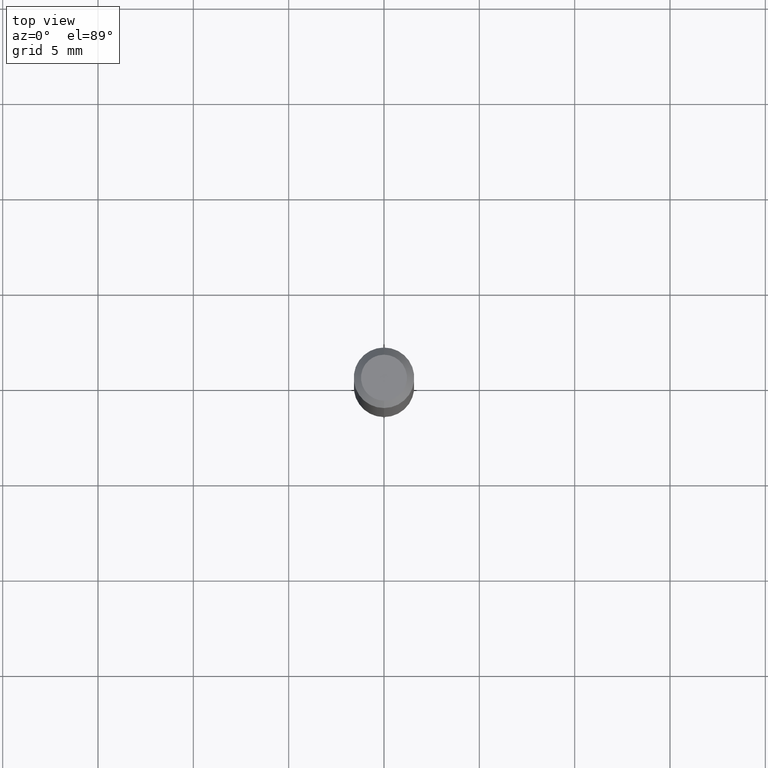
[diagram: clean part render]
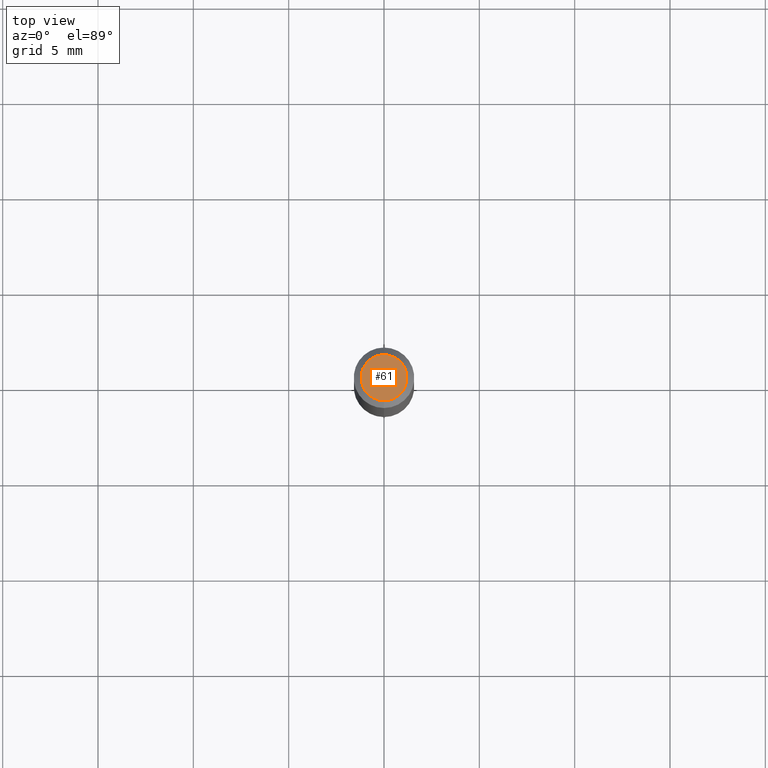
[diagram: same view with one face highlighted and labeled with its STEP entity id]
A machine part, top view. The second image highlights one B-rep face of the part: STEP entity #61.
In plain terms, the highlighted planar face has unit normal (0, -0, -1).
Its self-contained STEP definition (entity closure, byte-faithful):
#3 = EDGE_CURVE ( 'NONE', #215, #467, #497, .T. ) ;
#39 = DIRECTION ( 'NONE',  ( -6.982962677686265133E-15, -1.000000000000000000, 3.491472756912976858E-15 ) ) ;
#50 = CARTESIAN_POINT ( 'NONE',  ( 8.756930564183345789E-45, -1.250251464974845708E-30, -3.580871317123690674E-16 ) ) ;
#60 = DIRECTION ( 'NONE',  ( 6.982962677686265922E-15, 1.000000000000000000, -3.491472756912977253E-15 ) ) ;
#61 = ADVANCED_FACE ( 'NONE', ( #463 ), #115, .F. ) ;
#62 = ORIENTED_EDGE ( 'NONE', *, *, #3, .T. ) ;
#115 = PLANE ( 'NONE',  #318 ) ;
#117 = DIRECTION ( 'NONE',  ( -2.445474798914943281E-29, 3.491472756912977253E-15, 1.000000000000000000 ) ) ;
#141 = DIRECTION ( 'NONE',  ( -6.982962677686265133E-15, -1.000000000000000000, 3.491472756912976858E-15 ) ) ;
#149 = DIRECTION ( 'NONE',  ( 2.445474798914943001E-29, -3.491472756912977253E-15, -1.000000000000000000 ) ) ;
#194 = EDGE_LOOP ( 'NONE', ( #259, #62 ) ) ;
#197 = CARTESIAN_POINT ( 'NONE',  ( -3.773273898774342241E-16, -0.04750000000000004219, -1.922421757590025168E-16 ) ) ;
#198 = AXIS2_PLACEMENT_3D ( 'NONE', #461, #117, #39 ) ;
#215 = VERTEX_POINT ( 'NONE', #197 ) ;
#250 = AXIS2_PLACEMENT_3D ( 'NONE', #50, #300, #141 ) ;
#253 = CARTESIAN_POINT ( 'NONE',  ( 3.840629472727450339E-16, 0.04750000000000004219, -5.239320876657356674E-16 ) ) ;
#259 = ORIENTED_EDGE ( 'NONE', *, *, #352, .T. ) ;
#300 = DIRECTION ( 'NONE',  ( -2.445474798914943281E-29, 3.491472756912977253E-15, 1.000000000000000000 ) ) ;
#318 = AXIS2_PLACEMENT_3D ( 'NONE', #451, #149, #60 ) ;
#352 = EDGE_CURVE ( 'NONE', #467, #215, #401, .T. ) ;
#401 = CIRCLE ( 'NONE', #250, 0.04750000000000004219 ) ;
#451 = CARTESIAN_POINT ( 'NONE',  ( 3.316907271900979054E-16, 0.04750000000000004219, -3.448885218095511090E-16 ) ) ;
#461 = CARTESIAN_POINT ( 'NONE',  ( 8.756930564183345789E-45, -1.250251464974845708E-30, -3.580871317123690674E-16 ) ) ;
#463 = FACE_OUTER_BOUND ( 'NONE', #194, .T. ) ;
#467 = VERTEX_POINT ( 'NONE', #253 ) ;
#497 = CIRCLE ( 'NONE', #198, 0.04750000000000004219 ) ;